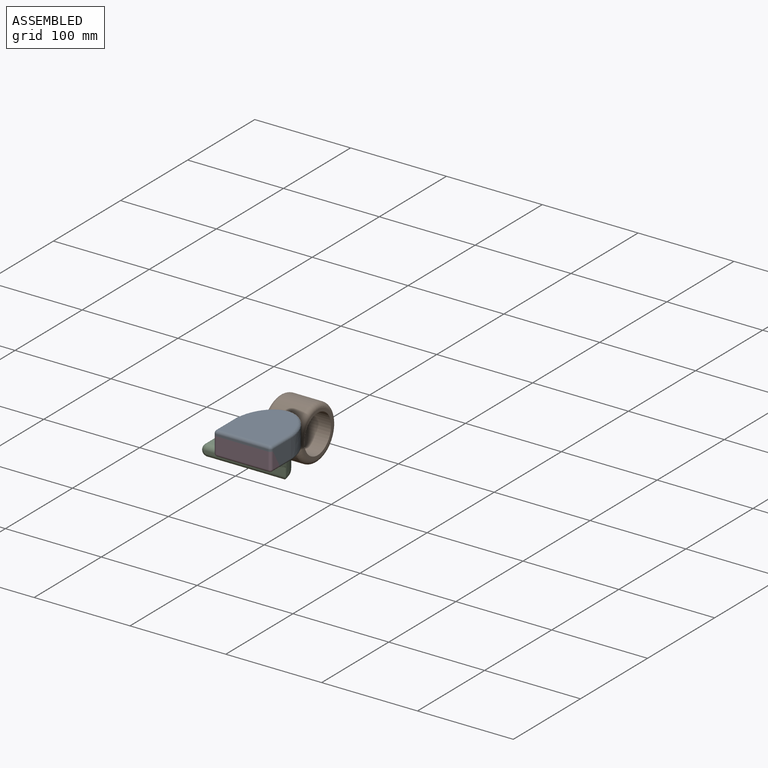
[diagram: assembled view]
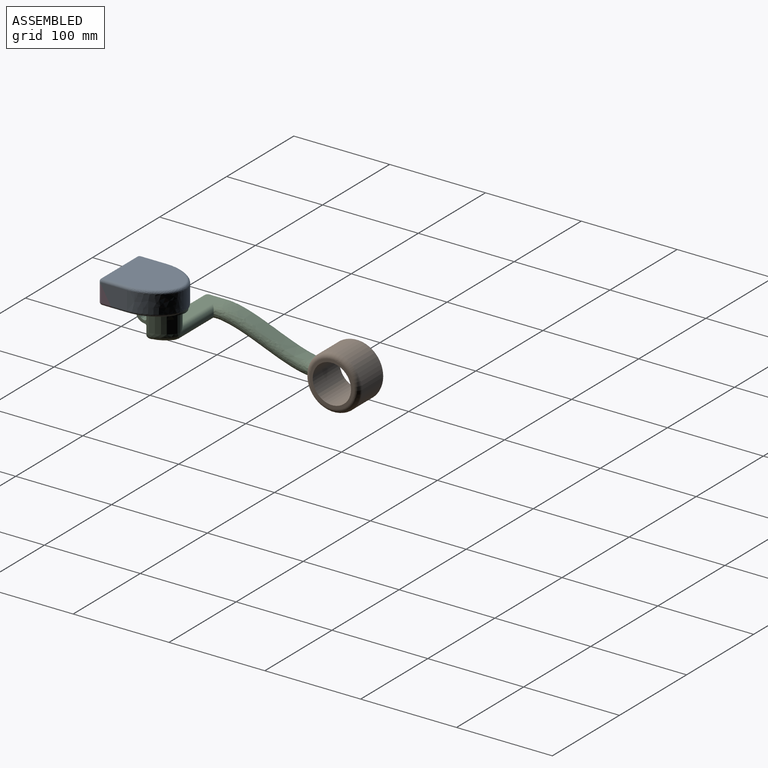
[diagram: assembled view, second angle]
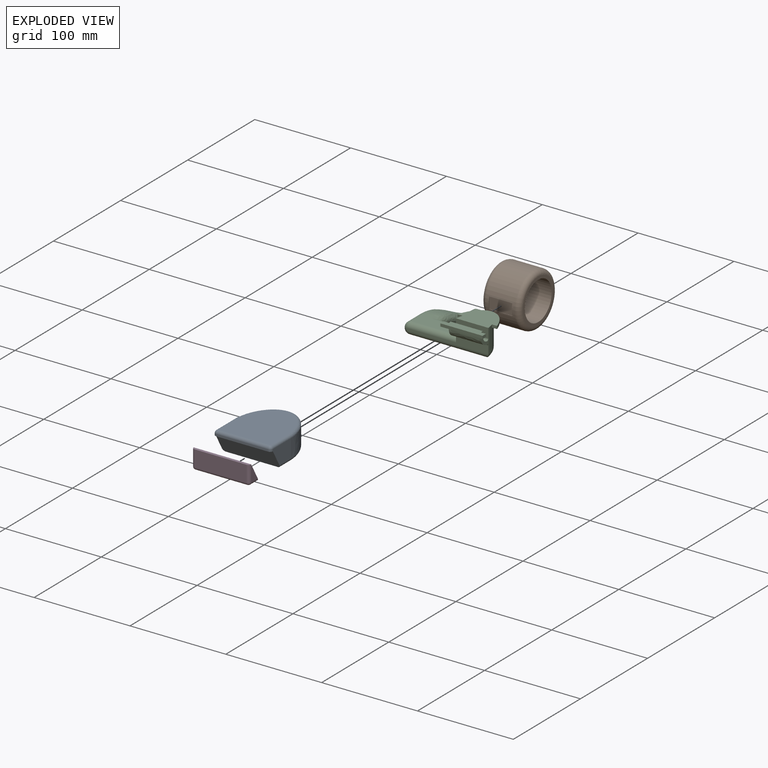
[diagram: exploded view]
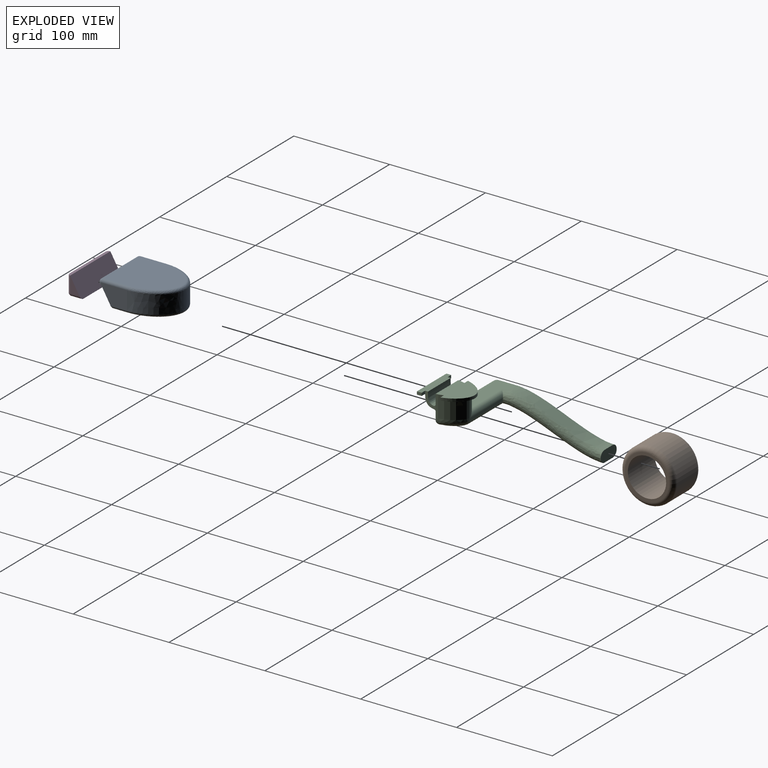
[diagram: exploded view, second angle]
ASSEMBLY  parts=4 mates=3
PART A: 35 faces, bbox 60.7x70.7x25.7 mm
  f0: plane 54x52.57mm, normal (0,0,-1), area 1361.1mm2, adj f7,f8,f9,f10,f15,f18,f19,f20
  f1: plane 27x19mm, normal (-1,0,0), area 431.5mm2, adj f5,f9,f13,f15,f34
  f2: plane 27x19mm, normal (1,0,0), area 431.5mm2, adj f4,f7,f11,f15,f30
  f3: plane 54x2mm, normal (0,-1,0), area 108mm2, adj f16,f30,f32,f34
  f4: extruded ~40x30mm, area 1043.5mm2, adj f2,f5,f8,f12
  f5: extruded ~40x30mm, area 1043.5mm2, adj f1,f4,f10,f14
  f6: plane 64x54mm, normal (0,0,1), area 3002.6mm2, adj f11,f12,f13,f14,f32
  f7: cylinder r=3mm len=17.3mm, axis (0,1,0), area 77.4mm2, adj f0,f2,f8,f15
  f8: bspline ~52.56x33.41mm, area 250.7mm2, adj f0,f4,f7,f10
  f9: cylinder r=3mm len=17.3mm, axis (0,-1,0), area 77.4mm2, adj f0,f1,f10,f15
  f10: bspline ~52.56x42.56mm, area 250.7mm2, adj f0,f5,f8,f9
  f11: cylinder r=3mm len=27mm, axis (0,-1,0), area 127.2mm2, adj f2,f6,f12,f31
  f12: bspline ~52.56x42.56mm, area 250.7mm2, adj f4,f6,f11,f14
  f13: cylinder r=3mm len=27mm, axis (0,1,0), area 127.2mm2, adj f1,f6,f14,f33
  f14: bspline ~52.56x33.41mm, area 250.7mm2, adj f5,f6,f12,f13
  f15: plane 60.73x20.73mm, normal (0,-0.87,-0.5), area 1381.2mm2, adj f0,f1,f2,f7,f9,f16,f30,f34
  f16: plane 60x2.89mm, normal (0,0,-1), area 169.3mm2, adj f3,f15,f30,f34
  f17: plane 44x3mm, normal (0,1,0), area 132mm2, adj f18,f21,f22,f29
  f18: plane 10x6mm, normal (1,0,0), area 45mm2, adj f0,f17,f19,f22,f28,f29
  f19: extruded ~32x22mm, area 159mm2, adj f0,f18,f20,f22,f26,f27
  f20: extruded ~32x22mm, area 159mm2, adj f0,f19,f21,f22,f23,f27
  f21: plane 10x6mm, normal (-1,0,0), area 45mm2, adj f0,f17,f20,f22,f28,f29
  f22: plane 44x42mm, normal (0,0,-1), area 1521.8mm2, adj f17,f18,f19,f20,f21
  f23: plane 5.21x3mm, normal (0,-1,0), area 15.6mm2, adj f0,f20,f24,f27
  f24: extruded ~16.49x15.34mm, area 71.5mm2, adj f0,f23,f25,f27
  f25: extruded ~16.49x15.34mm, area 71.5mm2, adj f0,f24,f26,f27
  f26: plane 5.21x3mm, normal (0,-1,0), area 15.6mm2, adj f0,f19,f25,f27
  f27: plane 41.16x21.51mm, normal (0,0,1), area 277.7mm2, adj f19,f20,f23,f24,f25,f26
  f28: plane 44x3mm, normal (0,1,0), area 132mm2, adj f0,f18,f21,f29
  f29: plane 44x5mm, normal (0,0,1), area 220mm2, adj f17,f18,f21,f28
  f30: cylinder r=3mm len=3mm, axis (0,0,1), area 9.4mm2, adj f2,f3,f15,f16,f31
  f31: sphere r=3mm, area 14.1mm2, adj f11,f30,f32
  f32: cylinder r=3mm len=54mm, axis (-1,0,0), area 254.5mm2, adj f3,f6,f31,f33
  f33: sphere r=3mm, area 14.1mm2, adj f13,f32,f34
  f34: cylinder r=3mm len=3mm, axis (0,0,-1), area 9.4mm2, adj f1,f3,f15,f16,f33
PART B: 11 faces, bbox 40x60.6x60.6 mm
  f0: cylinder r=28mm len=56mm, axis (-1,0,0), area 4987.6mm2, adj f4,f5,f6,f7,f9,f10
  f1: plane 46x46mm, normal (-1,0,0), area 405.3mm2, adj f2,f4
  f2: cylinder r=20mm len=40mm, axis (-1,0,0), area 5026.5mm2, adj f1,f3
  f3: plane 46x46mm, normal (1,0,0), area 405.3mm2, adj f2,f5
  f4: torus R=23mm, axis (-1,0,0), area 1292.1mm2, adj f0,f1
  f5: torus R=23mm, axis (-1,0,0), area 1292.1mm2, adj f0,f3
  f6: plane 12x1mm, normal (-1,0,0), area 9.4mm2, adj f0,f8,f9,f10
  f7: plane 12x1mm, normal (1,0,0), area 9.4mm2, adj f0,f8,f9,f10
  f8: plane 24x12mm, normal (0,0,1), area 288mm2, adj f6,f7,f9,f10
  f9: plane 24x0.35mm, normal (0,-1,0), area 8.4mm2, adj f0,f6,f7,f8
  f10: plane 24x0.35mm, normal (0,1,0), area 8.4mm2, adj f0,f6,f7,f8
PART C: 38 faces, bbox 105.8x134.5x64.7 mm
  f0: plane 48.95x2mm, normal (0,-1,0), area 97.8mm2, adj f7,f30,f32,f37
  f1: extruded ~24x23mm, area 519.5mm2, adj f2,f3,f7,f8,f9,f10,f18,f25
  f2: plane 84.73x8.09mm, normal (0,1,0), area 374.4mm2, adj f1,f7,f26,f34,f35,f36
  f3: plane 5.21x3mm, normal (0,1,0), area 15.6mm2, adj f1,f4,f9,f10
  f4: extruded ~21.49x20.56mm, area 95.1mm2, adj f3,f5,f9,f10
  f5: extruded ~21.49x20.56mm, area 95.1mm2, adj f4,f6,f9,f10
  f6: plane 5.21x3mm, normal (0,1,0), area 15.6mm2, adj f5,f7,f9,f10
  f7: extruded ~25x24mm, area 716mm2, adj f0,f1,f2,f6,f8,f9,f10,f24
  f8: plane 33.73x9.86mm, normal (0,1,0), area 332.6mm2, adj f1,f7,f10,f25
  f9: plane 41.16x21.51mm, normal (0,0,1), area 277.7mm2, adj f1,f3,f4,f5,f6,f7
  f10: plane 41.16x29.02mm, normal (0,0,-1), area 873.4mm2, adj f1,f3,f4,f5,f6,f7,f8
  f11: plane 77.74x14mm, normal (0,0,1), area 1038.9mm2, adj f28,f32,f33,f34
  f12: plane 3x3mm, normal (1,0,0), area 9mm2, adj f13,f19,f21,f24
  f13: plane 5.14x3mm, normal (0,-1,0), area 15.4mm2, adj f12,f14,f20,f21
  f14: plane 5x3mm, normal (1,0,0), area 15mm2, adj f13,f15,f20,f21
  f15: plane 44x3mm, normal (0,1,0), area 132mm2, adj f14,f16,f20,f21
  f16: plane 5x3mm, normal (-1,0,0), area 15mm2, adj f15,f17,f20,f21
  f17: plane 5.14x3mm, normal (0,-1,0), area 15.4mm2, adj f16,f18,f20,f21
  f18: plane 16.91x11mm, normal (-1,0,0), area 60.4mm2, adj f1,f17,f19,f21,f22,f23,f25,f26
  f19: plane 33.73x3mm, normal (0,-1,0), area 101.2mm2, adj f12,f18,f21,f22
  f20: plane 44x5mm, normal (0,0,1), area 220mm2, adj f13,f14,f15,f16,f17,f23
  f21: plane 44x8mm, normal (0,0,-1), area 321.2mm2, adj f12,f13,f14,f15,f16,f17,f18,f19
  f22: extruded ~33.73x8.84mm, area 399.7mm2, adj f18,f19,f24,f25
  f23: extruded ~33.73x11.92mm, area 575.2mm2, adj f18,f20,f24,f26
  f24: plane 13.91x11mm, normal (1,0,0), area 51.4mm2, adj f7,f12,f22,f23,f25,f26
  f25: cylinder r=2mm len=33.73mm, axis (-1,0,0), area 116.2mm2, adj f1,f8,f18,f22,f24
  f26: cylinder r=2mm len=33.73mm, axis (-1,0,0), area 99.7mm2, adj f2,f18,f23,f24
  f27: plane 57.87x14.04mm, normal (0,0,-1), area 750.7mm2, adj f1,f28,f36,f37
  f28: cylinder r=6mm len=19mm, axis (0,-1,0), area 358.1mm2, adj f11,f27,f30,f31,f35
  f29: plane 24x12mm, normal (0,-1,0), area 257.1mm2, adj f30,f31
  f30: bspline ~99.45x46.7mm, area 4444.8mm2, adj f0,f28,f29,f31,f32,f37
  f31: bspline ~94.45x46.7mm, area 1855.2mm2, adj f28,f29,f30
  f32: cylinder r=5mm len=66.86mm, axis (1,0,0), area 402.9mm2, adj f0,f11,f30,f33
  f33: bspline ~24.95x21.95mm, area 202.8mm2, adj f7,f11,f32,f34
  f34: cylinder r=5mm len=83.73mm, axis (1,0,0), area 634.1mm2, adj f2,f11,f33,f35
  f35: torus R=1mm, axis (0,1,0), area 103.2mm2, adj f2,f28,f34,f36
  f36: cylinder r=5mm len=50.82mm, axis (-1,0,0), area 395.9mm2, adj f1,f2,f27,f35
  f37: cylinder r=5mm len=66.86mm, axis (-1,0,0), area 419.4mm2, adj f0,f1,f27,f30
PART D: 13 faces, bbox 60x14.4x20 mm
  f0: plane 16.8x9.7mm, normal (1,0,0), area 81.5mm2, adj f5,f6,f7
  f1: plane 16.8x9.7mm, normal (-1,0,0), area 81.5mm2, adj f5,f8,f9
  f2: plane 54x11.43mm, normal (0,0,-1), area 617.4mm2, adj f5,f7,f8,f12
  f3: plane 54x17mm, normal (0,-1,0), area 918mm2, adj f4,f6,f9,f12
  f4: plane 60x2.89mm, normal (0,0,1), area 169.3mm2, adj f3,f5,f6,f9
  f5: plane 60x20mm, normal (0,0.87,0.5), area 1381.2mm2, adj f0,f1,f2,f4,f6,f7,f8,f9
  f6: cylinder r=3mm len=17mm, axis (0,0,1), area 80.1mm2, adj f0,f3,f4,f5,f10
  f7: cylinder r=3mm len=11.43mm, axis (0,-1,0), area 50.9mm2, adj f0,f2,f5,f10
  f8: cylinder r=3mm len=11.43mm, axis (0,1,0), area 50.9mm2, adj f1,f2,f5,f11
  f9: cylinder r=3mm len=17mm, axis (0,0,-1), area 80.1mm2, adj f1,f3,f4,f5,f11
  f10: sphere r=3mm, area 14.1mm2, adj f6,f7,f12
  f11: sphere r=3mm, area 14.1mm2, adj f8,f9,f12
  f12: cylinder r=3mm len=54mm, axis (-1,0,0), area 254.5mm2, adj f2,f3,f10,f11
PLACE A t=(0,-2.81,2.37)mm
PLACE B rot(axis=(1,0,0),90deg) t=(-71.75,153.64,-65.83)mm
PLACE C rot(axis=(1,0,0),180deg) t=(18.25,26.64,-7.13)mm
PLACE D t=(0,-18.38,2.37)mm
MATE fastened C.f15 <-> A.f28  axis (0,-1,0) through (0,-7.81,-8.63)mm
MATE fastened D.f5 <-> A.f15  axis (0,0.87,0.5) through (0,-18.38,-10.13)mm
MATE fastened B.f8 <-> C.f29  axis (0,-1,0) through (-71.75,126.64,-65.83)mm
